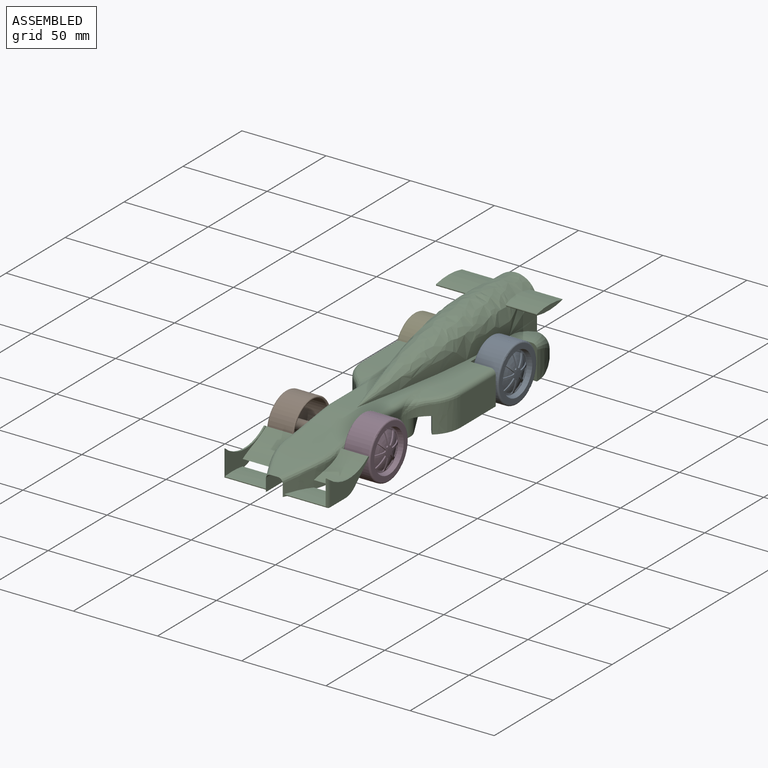
[diagram: assembled view]
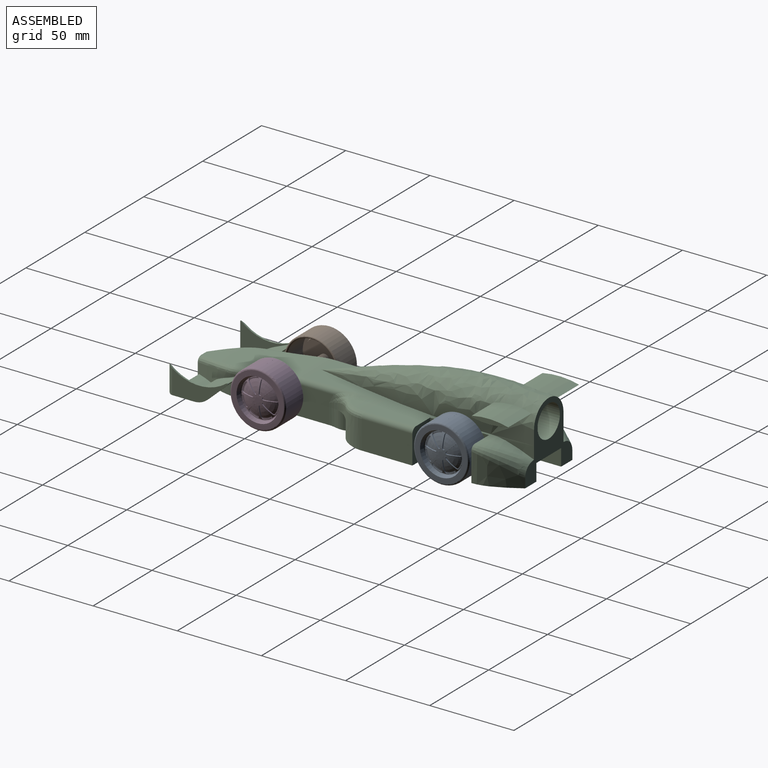
[diagram: assembled view, second angle]
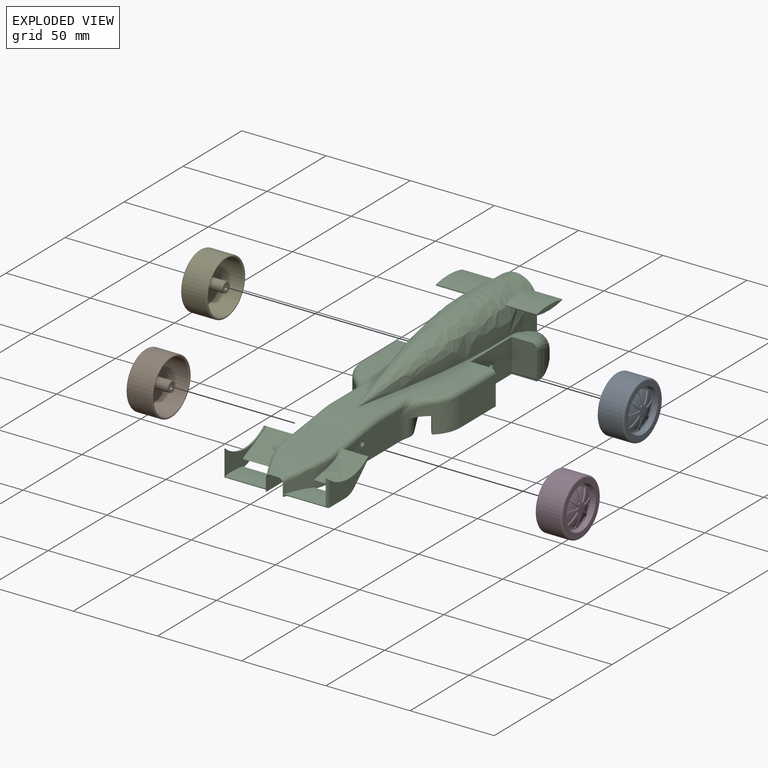
[diagram: exploded view]
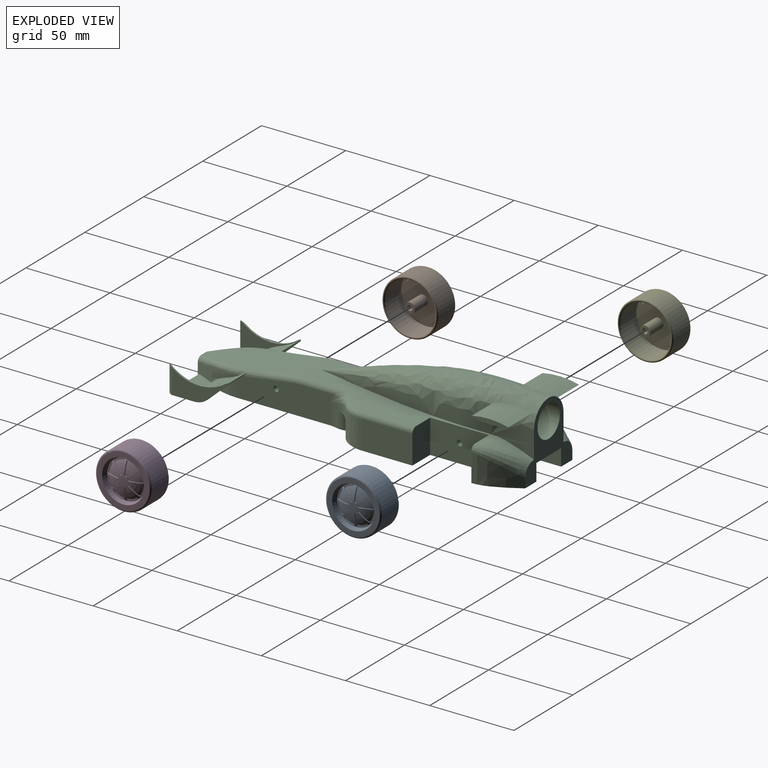
[diagram: exploded view, second angle]
ASSEMBLY  parts=5 mates=4
PART A: 90 faces, bbox 16.1x36.1x36.1 mm
  f0: cylinder r=16.5mm len=16.5mm, axis (1,0,0), area 362.7mm2, adj f1,f3,f86,f88
  f1: torus R=15.5mm, axis (1,0,0), area 159.3mm2, adj f0,f2,f7,f84,f85,f86,f87,f88
  f2: cylinder r=16.5mm len=33mm, axis (1,0,0), area 1088.4mm2, adj f1,f3,f84,f87
  f3: torus R=15.81mm, axis (1,0,0), area 215.3mm2, adj f0,f2,f8,f84,f85,f86,f87,f88
  f4: torus R=13.24mm, axis (1,0,0), area 10.3mm2, adj f7,f15
  f5: cylinder r=1.55mm len=13mm, axis (1,0,0), area 126.6mm2, adj f6,f13
  f6: cone r=1.55mm half-angle=51.1deg, axis (-1,0,0), area 9.7mm2, adj f5
  f7: plane 31x31mm, normal (1,0,0), area 203.7mm2, adj f1,f4
  f8: cylinder r=15.12mm len=30.24mm, axis (1,0,0), area 1282.5mm2, adj f3,f9
  f9: plane 30.24x30.24mm, normal (-1,0,0), area 177.4mm2, adj f8,f10
  f10: cone r=13.12mm half-angle=16.7deg, axis (1,0,0), area 249.3mm2, adj f9,f11
  f11: plane 24.44x24.44mm, normal (-1,0,0), area 439.9mm2, adj f10,f12
  f12: cylinder r=3.05mm len=11.19mm, axis (1,0,0), area 214.4mm2, adj f11,f13
  f13: plane 6.1x6.1mm, normal (-1,0,0), area 21.7mm2, adj f5,f12
  f14: plane 26.24x26.24mm, normal (1,0,0), area 49.9mm2, adj f15,f17
  f15: cylinder r=13.12mm len=26.24mm, axis (1,0,0), area 0.6mm2, adj f4,f14
  f16: plane 3x3mm, normal (1,0,0), area 7.1mm2, adj f61
  f17: cone r=12.5mm half-angle=16.7deg, axis (1,0,0), area 188.9mm2, adj f14,f18
  f18: torus R=11.31mm, axis (1,0,0), area 65.6mm2, adj f17,f24,f30,f36,f42,f48,f54,f60
  f19: cylinder r=0.75mm len=1.28mm, axis (1,0,0), area 1.3mm2, adj f20,f23,f61,f68
  f20: plane 7.03x3.12mm, normal (0,-1,0), area 4.9mm2, adj f19,f21,f61,f68
  f21: cylinder r=1mm len=1.16mm, axis (1,0,0), area 1.1mm2, adj f20,f24,f61,f68,f69
  f22: cylinder r=1mm len=1.52mm, axis (1,0,0), area 1.1mm2, adj f23,f24,f61,f68,f69
  f23: plane 5.1x5.1mm, normal (0,0.71,-0.71), area 4.9mm2, adj f19,f22,f61,f68
  f24: cylinder r=11.05mm len=4.66mm, axis (1,0,0), area 1.8mm2, adj f18,f21,f22,f69
  f25: cylinder r=1mm len=1.16mm, axis (1,0,0), area 1.1mm2, adj f26,f30,f61,f70,f71
  f26: plane 7.03x3.12mm, normal (0,0,-1), area 4.9mm2, adj f25,f27,f61,f71
  f27: cylinder r=0.75mm len=1.28mm, axis (1,0,0), area 1.3mm2, adj f26,f29,f61,f71
  f28: cylinder r=1mm len=1.52mm, axis (1,0,0), area 1.1mm2, adj f29,f30,f61,f70,f71
  f29: plane 5.1x5.1mm, normal (0,-0.71,0.71), area 4.9mm2, adj f27,f28,f61,f71
  f30: cylinder r=11.05mm len=4.66mm, axis (1,0,0), area 1.8mm2, adj f18,f25,f28,f70
  f31: plane 7.03x3.12mm, normal (0,0,1), area 4.9mm2, adj f32,f35,f61,f72
  f32: cylinder r=1mm len=1.16mm, axis (1,0,0), area 1.1mm2, adj f31,f36,f61,f72,f73
  f33: cylinder r=1mm len=1.52mm, axis (1,0,0), area 1.1mm2, adj f34,f36,f61,f72,f73
  f34: plane 5.1x5.1mm, normal (0,-0.71,-0.71), area 4.9mm2, adj f33,f35,f61,f72
  f35: cylinder r=0.75mm len=1.28mm, axis (1,0,0), area 1.3mm2, adj f31,f34,f61,f72
  f36: cylinder r=11.05mm len=4.66mm, axis (1,0,0), area 1.8mm2, adj f18,f32,f33,f73
  f37: plane 5.1x5.1mm, normal (0,0.71,0.71), area 4.9mm2, adj f38,f41,f61,f80
  f38: cylinder r=1mm len=1.52mm, axis (1,0,0), area 1.1mm2, adj f37,f42,f61,f80,f81
  f39: cylinder r=1mm len=1.16mm, axis (1,0,0), area 1.1mm2, adj f40,f42,f61,f80,f81
  f40: plane 7.03x3.12mm, normal (0,-1,0), area 4.9mm2, adj f39,f41,f61,f80
  f41: cylinder r=0.75mm len=1.28mm, axis (1,0,0), area 1.3mm2, adj f37,f40,f61,f80
  f42: cylinder r=11.05mm len=4.66mm, axis (1,0,0), area 1.8mm2, adj f18,f38,f39,f81
  f43: plane 7.03x3.12mm, normal (0,1,0), area 4.9mm2, adj f44,f47,f61,f74
  f44: cylinder r=1mm len=1.16mm, axis (1,0,0), area 1.1mm2, adj f43,f48,f61,f74,f75
  f45: cylinder r=1mm len=1.52mm, axis (1,0,0), area 1.1mm2, adj f46,f48,f61,f74,f75
  f46: plane 5.1x5.1mm, normal (0,-0.71,0.71), area 4.9mm2, adj f45,f47,f61,f74
  f47: cylinder r=0.75mm len=1.28mm, axis (1,0,0), area 1.3mm2, adj f43,f46,f61,f74
  f48: cylinder r=11.05mm len=4.66mm, axis (1,0,0), area 1.8mm2, adj f18,f44,f45,f75
  f49: plane 5.1x5.1mm, normal (0,0.71,-0.71), area 4.9mm2, adj f50,f53,f61,f76
  f50: cylinder r=1mm len=1.52mm, axis (1,0,0), area 1.1mm2, adj f49,f54,f61,f76,f77
  f51: cylinder r=1mm len=1.16mm, axis (1,0,0), area 1.1mm2, adj f52,f54,f61,f76,f77
  f52: plane 7.03x3.12mm, normal (0,0,1), area 4.9mm2, adj f51,f53,f61,f76
  f53: cylinder r=0.75mm len=1.28mm, axis (1,0,0), area 1.3mm2, adj f49,f52,f61,f76
  f54: cylinder r=11.05mm len=4.66mm, axis (1,0,0), area 1.8mm2, adj f18,f50,f51,f77
  f55: plane 7.03x3.12mm, normal (0,0,-1), area 4.9mm2, adj f56,f59,f61,f78
  f56: cylinder r=1mm len=1.16mm, axis (1,0,0), area 1.1mm2, adj f55,f60,f61,f78,f79
  f57: cylinder r=1mm len=1.52mm, axis (1,0,0), area 1.1mm2, adj f58,f60,f61,f78,f79
  f58: plane 5.1x5.1mm, normal (0,0.71,0.71), area 4.9mm2, adj f57,f59,f61,f78
  f59: cylinder r=0.75mm len=1.28mm, axis (1,0,0), area 1.3mm2, adj f55,f58,f61,f78
  f60: cylinder r=11.05mm len=4.66mm, axis (1,0,0), area 1.8mm2, adj f18,f56,f57,f79
  f61: torus R=1.5mm, axis (1,0,0), area 131.6mm2, adj f16,f18,f19,f20,f21,f22,f23,f25
  f62: plane 5.1x5.1mm, normal (0,-0.71,-0.71), area 4.9mm2, adj f61,f63,f66,f82
  f63: cylinder r=1mm len=1.52mm, axis (1,0,0), area 1.1mm2, adj f61,f62,f67,f82,f83
  f64: cylinder r=1mm len=1.16mm, axis (1,0,0), area 1.1mm2, adj f61,f65,f67,f82,f83
  f65: plane 7.03x3.12mm, normal (0,1,0), area 4.9mm2, adj f61,f64,f66,f82
  f66: cylinder r=0.75mm len=1.28mm, axis (1,0,0), area 1.3mm2, adj f61,f62,f65,f82
  f67: cylinder r=11.05mm len=4.66mm, axis (1,0,0), area 1.8mm2, adj f18,f63,f64,f83
  f68: torus R=1.5mm, axis (1,0,0), area 29.3mm2, adj f19,f20,f21,f22,f23,f69
  f69: plane 6.16x3.12mm, normal (1,0,0), area 4.5mm2, adj f21,f22,f24,f68
  f70: plane 6.16x3.12mm, normal (1,0,0), area 4.5mm2, adj f25,f28,f30,f71
  f71: torus R=1.5mm, axis (1,0,0), area 29.3mm2, adj f25,f26,f27,f28,f29,f70
  f72: torus R=1.5mm, axis (1,0,0), area 29.3mm2, adj f31,f32,f33,f34,f35,f73
  f73: plane 6.16x3.12mm, normal (1,0,0), area 4.5mm2, adj f32,f33,f36,f72
  f74: torus R=1.5mm, axis (1,0,0), area 29.3mm2, adj f43,f44,f45,f46,f47,f75
  f75: plane 6.16x3.12mm, normal (1,0,0), area 4.5mm2, adj f44,f45,f48,f74
  f76: torus R=1.5mm, axis (1,0,0), area 29.3mm2, adj f49,f50,f51,f52,f53,f77
  f77: plane 6.16x3.12mm, normal (1,0,0), area 4.5mm2, adj f50,f51,f54,f76
  f78: torus R=1.5mm, axis (1,0,0), area 29.3mm2, adj f55,f56,f57,f58,f59,f79
  f79: plane 6.16x3.12mm, normal (1,0,0), area 4.5mm2, adj f56,f57,f60,f78
  f80: torus R=1.5mm, axis (1,0,0), area 29.3mm2, adj f37,f38,f39,f40,f41,f81
  f81: plane 6.16x3.12mm, normal (1,0,0), area 4.5mm2, adj f38,f39,f42,f80
  f82: torus R=1.5mm, axis (1,0,0), area 29.3mm2, adj f62,f63,f64,f65,f66,f83
  f83: plane 6.16x3.12mm, normal (1,0,0), area 4.5mm2, adj f63,f64,f67,f82
  f84: plane 14.18x0.01mm, normal (0,1,0), area 0.1mm2, adj f1,f2,f3,f85
  f85: plane 14.18x0.01mm, normal (0,0,1), area 0.1mm2, adj f1,f3,f84,f86
  f86: plane 14.18x0.01mm, normal (0,-1,0), area 0.1mm2, adj f0,f1,f3,f85
  f87: plane 14.18x0.01mm, normal (0,0,1), area 0.1mm2, adj f1,f2,f3,f89
  f88: plane 14.18x0.01mm, normal (0,0,-1), area 0.1mm2, adj f0,f1,f3,f89
  f89: plane 14.18x0.01mm, normal (0,1,0), area 0.1mm2, adj f1,f3,f87,f88
PART B: same geometry as A
PART C: 164 faces, bbox 62.6x210.9x51.2 mm
  f0: plane 72.73x46.56mm, normal (0,0,-1), area 1115.8mm2, adj f3,f5,f6,f34,f35,f52,f53,f132
  f1: plane 21x1.69mm, normal (0,0,-1), area 35.4mm2, adj f2,f4,f11,f145
  f2: plane 5.87x2.1mm, normal (-1,0,0), area 8mm2, adj f1,f11,f17,f145
  f3: plane 75.59x10mm, normal (1,0,0), area 697.4mm2, adj f0,f8,f9,f130,f146,f148,f151,f152
  f4: plane 5.87x2.1mm, normal (1,0,0), area 8mm2, adj f1,f11,f17,f145
  f5: extruded ~48.21x2.99mm, area 155.4mm2, adj f0,f12,f133,f159,f160
  f6: extruded ~48.21x2.99mm, area 155.4mm2, adj f0,f13,f134,f157,f158
  f7: plane 114.99x11.01mm, normal (0,0,-1), area 953.9mm2, adj f12,f30,f39,f53,f142,f149,f159
  f8: plane 104.42x19.5mm, normal (0,0,-1), area 1257.9mm2, adj f3,f9,f10,f35,f36,f42,f45,f56
  f9: plane 41.59x40.59mm, normal (0,1,0), area 629.1mm2, adj f3,f8,f18,f32,f40,f41,f42,f47
  f10: plane 30x17mm, normal (-1,0,0), area 510mm2, adj f8,f35,f56,f78
  f11: cylinder r=1.6mm len=30mm, axis (-1,0,0), area 241.4mm2, adj f1,f2,f4,f17,f36,f37
  f12: plane 114.77x7.26mm, normal (-1,0,0), area 796.2mm2, adj f5,f7,f14,f30,f135,f159
  f13: plane 114.77x7.26mm, normal (1,0,0), area 796.2mm2, adj f6,f16,f19,f31,f136,f158
  f14: extruded ~40.41x2.99mm, area 178.3mm2, adj f12,f15,f63,f137
  f15: plane 38.2x4.02mm, normal (0,0,-1), area 153.6mm2, adj f14,f16,f61,f139
  f16: extruded ~40.41x2.99mm, area 178.3mm2, adj f13,f15,f69,f138
  f17: plane 21x1.69mm, normal (0,0,-1), area 35.4mm2, adj f2,f4,f11,f145
  f18: plane 104.42x19.5mm, normal (0,0,-1), area 1257.9mm2, adj f9,f37,f47,f49,f52,f54,f55,f140
  f19: plane 114.99x11.01mm, normal (0,0,-1), area 953.9mm2, adj f13,f31,f34,f38,f143,f150,f158
  f20: cylinder r=26.86mm len=34.15mm, axis (1,0,0), area 36.2mm2, adj f23,f114,f117,f119,f128
  f21: plane 14.44x0.03mm, normal (0,-1,0), area 0.2mm2, adj f22,f121,f122,f129
  f22: cylinder r=3.57mm len=16.14mm, axis (0,0,-1), area 41.3mm2, adj f21,f27,f122,f123,f127,f129
  f23: cylinder r=3.57mm len=16.14mm, axis (0,0,-1), area 41.3mm2, adj f20,f24,f25,f26,f119,f128
  f24: plane 13.85x1mm, normal (0,0,-1), area 13.8mm2, adj f23,f25,f114,f115,f116,f119
  f25: cylinder r=1.45mm len=1.45mm, axis (1,0,0), area 0.9mm2, adj f23,f24,f26,f114,f115
  f26: plane 14.44x0.03mm, normal (0,-1,0), area 0.2mm2, adj f23,f25,f114,f128
  f27: plane 32.93x14.97mm, normal (1,0,0), area 253.3mm2, adj f22,f123,f124,f125,f126,f127
  f28: plane 1.9x1mm, normal (1,0,0), area 0.8mm2, adj f30,f65,f110
  f29: plane 1.9x1mm, normal (-1,0,0), area 0.8mm2, adj f31,f71,f109
  f30: bspline ~30x15mm, area 287.3mm2, adj f7,f12,f28,f39,f63,f64,f103,f104
  f31: bspline ~30x15mm, area 287.3mm2, adj f13,f19,f29,f38,f69,f70,f100,f101
  f32: bspline ~135x31.11mm, area 5770.7mm2, adj f9,f33,f40,f41,f91,f92,f93,f95
  f33: plane 111.01x54mm, normal (0,0,1), area 1779.8mm2, adj f32,f36,f37,f44,f46,f54,f56,f57
  f34: cylinder r=18.75mm len=16.11mm, axis (0,0,-1), area 118.8mm2, adj f0,f19,f35,f38,f80,f150
  f35: cylinder r=18.75mm len=17mm, axis (0,0,-1), area 278.4mm2, adj f0,f8,f10,f34,f79,f163
  f36: plane 35x20mm, normal (-1,0,0), area 692mm2, adj f8,f11,f33,f45,f56
  f37: plane 35x20mm, normal (1,0,0), area 692mm2, adj f11,f18,f33,f49,f54
  f38: plane 57.54x17mm, normal (-1,0,0), area 841.5mm2, adj f19,f31,f34,f71,f72,f73,f74,f87
  f39: plane 57.54x17mm, normal (1,0,0), area 841.5mm2, adj f7,f30,f53,f65,f66,f67,f68,f90
  f40: extruded ~25x7.51mm, area 70.2mm2, adj f9,f32,f46,f81
  f41: extruded ~25x7.51mm, area 69.5mm2, adj f9,f32,f44,f83
  f42: bspline ~25x20mm, area 309.3mm2, adj f8,f9,f45,f83,f84
  f43: bspline ~25x15mm, area 118.1mm2, adj f44,f45,f84
  f44: extruded ~24.39x7.22mm, area 46.3mm2, adj f33,f41,f43,f83
  f45: plane 20.1x15.1mm, normal (0,-1,0), area 298.1mm2, adj f8,f36,f42,f43,f84
  f46: extruded ~24.4x7.23mm, area 46.4mm2, adj f33,f40,f48,f81
  f47: bspline ~25x20mm, area 309.3mm2, adj f9,f18,f49,f81,f82
  f48: bspline ~25x15mm, area 118.1mm2, adj f46,f49,f82
  f49: plane 20.1x15.1mm, normal (0,-1,0), area 298.1mm2, adj f18,f37,f47,f48,f82
  f50: cylinder r=9.5mm len=52mm, axis (0,1,0), area 3103.9mm2, adj f9,f51
  f51: plane 19x19mm, normal (0,1,0), area 283.5mm2, adj f50
  f52: cylinder r=18.75mm len=17mm, axis (0,0,-1), area 200.9mm2, adj f0,f18,f53,f55,f76,f162
  f53: cylinder r=18.75mm len=16.11mm, axis (0,0,-1), area 118.8mm2, adj f0,f7,f39,f52,f77,f149
  f54: plane 20x15mm, normal (0,1,0), area 298.1mm2, adj f18,f33,f37,f55,f75
  f55: plane 30x17mm, normal (1,0,0), area 510mm2, adj f18,f52,f54,f75
  f56: plane 20x15mm, normal (0,1,0), area 298.1mm2, adj f8,f10,f33,f36,f78
  f57: cylinder r=92.5mm len=15.53mm, axis (-1,0,0), area 126.8mm2, adj f33,f79,f80,f85
  f58: cylinder r=92.5mm len=15.53mm, axis (1,0,0), area 126.8mm2, adj f33,f76,f77,f88
  f59: plane 24x12.97mm, normal (0,-0.14,0.99), area 314.5mm2, adj f60,f62,f66,f72
  f60: cylinder r=60mm len=24mm, axis (1,0,0), area 204.3mm2, adj f33,f59,f67,f73
  f61: bspline ~30x30mm, area 311.6mm2, adj f15,f62,f63,f69
  f62: bspline ~27.9x24.13mm, area 579.4mm2, adj f59,f61,f64,f65,f70,f71
  f63: bspline ~30.02x13.66mm, area 116.6mm2, adj f14,f30,f61,f64
  f64: bspline ~10.45x4.23mm, area 30.2mm2, adj f30,f62,f63,f65
  f65: bspline ~54.83x11.22mm, area 84.3mm2, adj f28,f39,f62,f64,f66,f110,f113
  f66: cylinder r=3mm len=13.4mm, axis (0,0.99,0.14), area 61.7mm2, adj f39,f59,f65,f67
  f67: torus R=57mm, axis (1,0,0), area 39.4mm2, adj f39,f60,f66,f68
  f68: cylinder r=3mm len=45.74mm, axis (0,1,0), area 129.9mm2, adj f33,f39,f67,f88,f89
  f69: bspline ~30.02x13.66mm, area 116.6mm2, adj f16,f31,f61,f70
  f70: bspline ~10.45x4.23mm, area 30.2mm2, adj f31,f62,f69,f71
  f71: bspline ~54.83x11.22mm, area 84.3mm2, adj f29,f38,f62,f70,f72,f106,f109
  f72: cylinder r=3mm len=13.4mm, axis (0,-0.99,-0.14), area 61.7mm2, adj f38,f59,f71,f73
  f73: torus R=57mm, axis (1,0,0), area 39.4mm2, adj f38,f60,f72,f74
  f74: cylinder r=3mm len=45.74mm, axis (0,-1,0), area 129.9mm2, adj f33,f38,f73,f85,f86
  f75: cylinder r=3mm len=30mm, axis (0,-1,0), area 141.4mm2, adj f33,f54,f55,f76
  f76: bspline ~16.84x10.76mm, area 76.2mm2, adj f52,f58,f75,f77
  f77: bspline ~21.16x12.24mm, area 37.8mm2, adj f53,f58,f76,f89,f90
  f78: cylinder r=3mm len=30mm, axis (0,1,0), area 141.4mm2, adj f10,f33,f56,f79
  f79: bspline ~16.84x10.76mm, area 76.2mm2, adj f35,f57,f78,f80
  f80: bspline ~21.16x12.24mm, area 37.8mm2, adj f34,f57,f79,f86,f87
  f81: bspline ~9.3x9.24mm, area 37.1mm2, adj f9,f40,f46,f47,f82
  f82: bspline ~22.81x15mm, area 205mm2, adj f47,f48,f49,f81
  f83: bspline ~9.3x9.24mm, area 37mm2, adj f9,f41,f42,f44,f84
  f84: bspline ~22.81x15mm, area 205mm2, adj f42,f43,f45,f83
  f85: bspline ~25.43x8.56mm, area 27.9mm2, adj f57,f74,f86
  f86: bspline ~13.79x5.44mm, area 42.5mm2, adj f74,f80,f85,f87
  f87: bspline ~8.18x6.66mm, area 8.7mm2, adj f38,f80,f86
  f88: bspline ~25.43x8.56mm, area 27.9mm2, adj f58,f68,f89
  f89: bspline ~13.82x5.46mm, area 42.5mm2, adj f68,f77,f88,f90
  f90: bspline ~6.44x5.18mm, area 8.7mm2, adj f39,f77,f89
  f91: cylinder r=47.74mm len=21.59mm, axis (1,0,0), area 410.8mm2, adj f32,f92,f93,f94
  f92: cylinder r=47.74mm len=21.59mm, axis (1,0,0), area 417.4mm2, adj f32,f91,f93,f94
  f93: cylinder r=0.51mm len=18.71mm, axis (1,0,0), area 25.7mm2, adj f32,f91,f92,f94
  f94: plane 22x3mm, normal (1,0,0), area 46.8mm2, adj f91,f92,f93
  f95: cylinder r=0.51mm len=18.71mm, axis (-1,0,0), area 25.7mm2, adj f32,f96,f97,f98
  f96: cylinder r=47.74mm len=21.59mm, axis (-1,0,0), area 417.4mm2, adj f32,f95,f97,f98
  f97: cylinder r=47.74mm len=21.59mm, axis (-1,0,0), area 410.8mm2, adj f32,f95,f96,f98
  f98: plane 22x3mm, normal (-1,0,0), area 46.8mm2, adj f95,f96,f97
  f99: cylinder r=1.6mm len=30mm, axis (-1,0,0), area 301.6mm2, adj f38,f39
  f100: cylinder r=0.45mm len=24.5mm, axis (-1,0,0), area 32mm2, adj f31,f101,f102,f114,f115
  f101: cylinder r=53.29mm len=24.3mm, axis (-1,0,0), area 308mm2, adj f31,f100,f102,f114
  f102: cylinder r=53.29mm len=24.3mm, axis (-1,0,0), area 308mm2, adj f31,f100,f101,f114,f115
  f103: cylinder r=0.45mm len=24.5mm, axis (1,0,0), area 32mm2, adj f30,f104,f105,f120,f121
  f104: cylinder r=53.29mm len=24.3mm, axis (1,0,0), area 308mm2, adj f30,f103,f105,f120,f121
  f105: cylinder r=53.29mm len=24.3mm, axis (1,0,0), area 308mm2, adj f30,f103,f104,f121
  f106: cylinder r=29.92mm len=17.05mm, axis (-1,0,0), area 309.6mm2, adj f31,f38,f71,f107,f109,f114
  f107: plane 17.76x2.97mm, normal (0,0.17,-0.98), area 51.7mm2, adj f31,f106,f108,f114
  f108: cylinder r=50mm len=17.75mm, axis (-1,0,0), area 148.2mm2, adj f31,f107,f109,f114
  f109: cylinder r=62.23mm len=15.75mm, axis (-1,0,0), area 205.9mm2, adj f29,f31,f71,f106,f108,f114
  f110: cylinder r=62.23mm len=15.75mm, axis (1,0,0), area 205.9mm2, adj f28,f30,f65,f111,f113,f121
  f111: cylinder r=50mm len=17.75mm, axis (1,0,0), area 148.2mm2, adj f30,f110,f112,f121
  f112: plane 17.76x2.97mm, normal (0,0.17,-0.98), area 51.7mm2, adj f30,f111,f113,f121
  f113: cylinder r=29.92mm len=17.05mm, axis (1,0,0), area 309.6mm2, adj f30,f39,f65,f110,f112,f121
  f114: plane 35.37x16.16mm, normal (1,0,0), area 246.1mm2, adj f20,f24,f25,f26,f100,f101,f102,f106
  f115: plane 5.86x0.43mm, normal (1,0,0), area 0.5mm2, adj f24,f25,f100,f102
  f116: cylinder r=11.77mm len=8mm, axis (1,0,0), area 8.8mm2, adj f24,f114,f118,f119
  f117: cylinder r=0.5mm len=1mm, axis (1,0,0), area 1.5mm2, adj f20,f114,f118,f119
  f118: plane 11.92x10.99mm, normal (0,0.68,-0.74), area 16.2mm2, adj f114,f116,f117,f119
  f119: plane 32.93x14.97mm, normal (-1,0,0), area 253.3mm2, adj f20,f23,f24,f116,f117,f118
  f120: plane 5.86x0.43mm, normal (-1,0,0), area 0.5mm2, adj f103,f104,f122,f123
  f121: plane 35.37x16.16mm, normal (-1,0,0), area 246.1mm2, adj f21,f103,f104,f105,f110,f111,f112,f113
  f122: cylinder r=1.45mm len=1.45mm, axis (-1,0,0), area 0.9mm2, adj f21,f22,f120,f121,f123
  f123: plane 13.85x1mm, normal (0,0,-1), area 13.8mm2, adj f22,f27,f120,f121,f122,f124
  f124: cylinder r=11.77mm len=8mm, axis (-1,0,0), area 8.8mm2, adj f27,f121,f123,f125
  f125: plane 11.92x10.99mm, normal (0,0.68,-0.74), area 16.2mm2, adj f27,f121,f124,f126
  f126: cylinder r=0.5mm len=1mm, axis (-1,0,0), area 1.5mm2, adj f27,f121,f125,f127
  f127: cylinder r=26.86mm len=34.15mm, axis (-1,0,0), area 36.2mm2, adj f22,f27,f121,f126,f129
  f128: cylinder r=0.25mm len=0.42mm, axis (-1,0,0), area 0.1mm2, adj f20,f23,f26,f114
  f129: cylinder r=0.25mm len=0.42mm, axis (-1,0,0), area 0.1mm2, adj f21,f22,f121,f127
  f130: plane 21.44x21mm, normal (0,0,-1), area 450.3mm2, adj f3,f9,f140,f151
  f131: cylinder r=41.85mm len=29.2mm, axis (-1,0,0), area 174.6mm2, adj f132,f133,f134,f135,f136,f137,f138,f139
  f132: cylinder r=2mm len=4.02mm, axis (-1,0,0), area 2.9mm2, adj f0,f131,f133,f134
  f133: bspline ~3.43x2.89mm, area 6.3mm2, adj f5,f131,f132,f135
  f134: bspline ~3.98x2.83mm, area 6.3mm2, adj f6,f131,f132,f136
  f135: torus R=43.85mm, axis (1,0,0), area 81.1mm2, adj f12,f131,f133,f137
  f136: torus R=43.85mm, axis (-1,0,0), area 81.1mm2, adj f13,f131,f134,f138
  f137: bspline ~3.43x2.89mm, area 6.3mm2, adj f14,f131,f135,f139
  f138: bspline ~3.43x2.9mm, area 6.3mm2, adj f16,f131,f136,f139
  f139: cylinder r=2mm len=4.02mm, axis (-1,0,0), area 2.9mm2, adj f15,f131,f137,f138
  f140: plane 75.59x10mm, normal (-1,0,0), area 697.4mm2, adj f0,f9,f18,f130,f146,f147,f151,f152
  f141: plane 10x8.44mm, normal (-0.87,-0.48,0), area 96.5mm2, adj f0,f18,f147,f161
  f142: plane 17.75x10.15mm, normal (0.87,0.48,0), area 201.2mm2, adj f0,f7,f149,f154,f159
  f143: plane 17.62x10.02mm, normal (-0.87,0.48,0), area 201.2mm2, adj f0,f19,f150,f155,f158
  f144: plane 10x8.44mm, normal (0.87,-0.48,0), area 96.5mm2, adj f0,f8,f148,f163
  f145: cylinder r=3.1mm len=21mm, axis (-1,0,0), area 161.8mm2, adj f1,f2,f4,f17
  f146: cylinder r=41.85mm len=21.53mm, axis (-1,0,0), area 457.4mm2, adj f3,f140,f151,f152
  f147: cylinder r=30mm len=14.54mm, axis (0,0,-1), area 151.8mm2, adj f0,f18,f140,f141
  f148: cylinder r=30mm len=14.54mm, axis (0,0,-1), area 151.8mm2, adj f0,f3,f8,f144
  f149: cylinder r=10mm len=10mm, axis (0,0,-1), area 77.2mm2, adj f0,f7,f53,f142
  f150: cylinder r=10mm len=10mm, axis (0,0,-1), area 77.2mm2, adj f0,f19,f34,f143
  f151: cylinder r=40mm len=21mm, axis (-1,0,0), area 218.6mm2, adj f3,f130,f140,f146
  f152: cylinder r=40mm len=21mm, axis (-1,0,0), area 218.6mm2, adj f0,f3,f140,f146
  f153: plane 4.68x2.49mm, normal (0,0.08,-1), area 4.7mm2, adj f0,f154,f159,f160
  f154: plane 3.75x2.14mm, normal (-1,0.1,0), area 3.3mm2, adj f142,f153,f159
  f155: plane 3.75x2.14mm, normal (1,0.1,0), area 3.3mm2, adj f143,f156,f158
  f156: plane 4.68x2.49mm, normal (0,0.08,-1), area 4.7mm2, adj f0,f155,f157,f158
  f157: bspline ~27.44x5.62mm, area 18.2mm2, adj f0,f6,f156,f158
  f158: bspline ~30.33x18.64mm, area 20.4mm2, adj f6,f13,f19,f143,f155,f156,f157
  f159: bspline ~28.76x18.78mm, area 20.1mm2, adj f5,f7,f12,f142,f153,f154,f160
  f160: bspline ~32.15x6.03mm, area 18.2mm2, adj f0,f5,f153,f159
  f161: cylinder r=28.43mm len=10mm, axis (0,0,1), area 72.8mm2, adj f0,f18,f141,f162
  f162: extruded ~10x6.03mm, area 77.5mm2, adj f18,f52,f161
  f163: cylinder r=28.43mm len=10mm, axis (0,0,1), area 72.8mm2, adj f0,f8,f35,f144
PART D: same geometry as A
PART E: same geometry as A
PLACE A t=(-5.32,12.98,-48.71)mm
PLACE B rot(axis=(0,1,0),180deg) t=(-66.7,-96.02,-48.71)mm
PLACE C t=(-36.01,55.48,-31.21)mm
PLACE D t=(-5.32,-96.02,-48.71)mm
PLACE E rot(axis=(0,1,0),180deg) t=(-66.7,12.98,-48.71)mm
MATE revolute D.f0 <-> C.f99  axis (-1,0,0) through (-21.01,-96.02,-48.71)mm
MATE revolute E.f0 <-> C.f11  axis (1,0,0) through (-51.01,12.98,-48.71)mm
MATE revolute A.f0 <-> C.f11  axis (-1,0,0) through (-21.01,12.98,-48.71)mm
MATE revolute B.f0 <-> C.f99  axis (1,0,0) through (-51.01,-96.02,-48.71)mm
